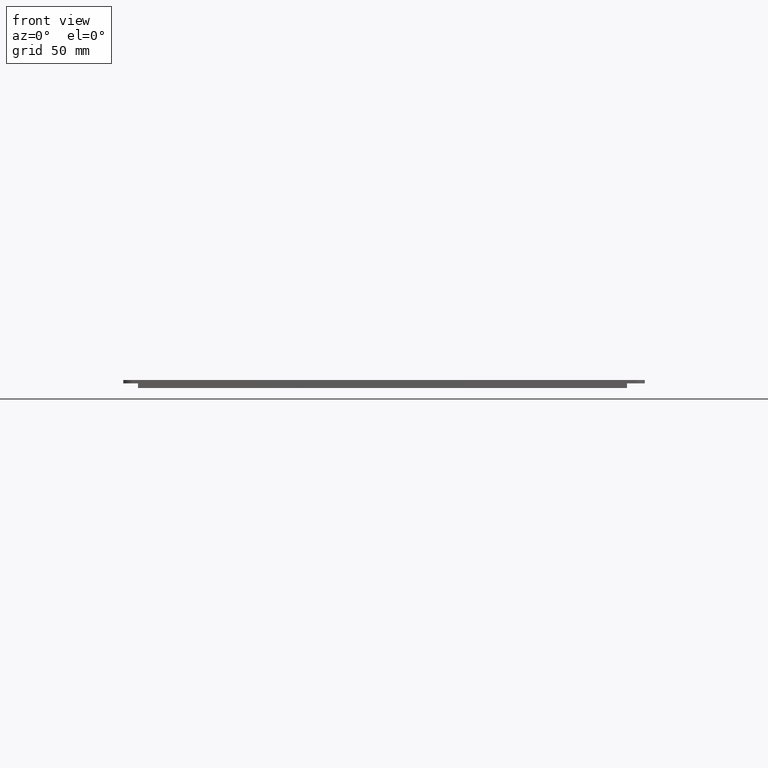
[diagram: clean part render]
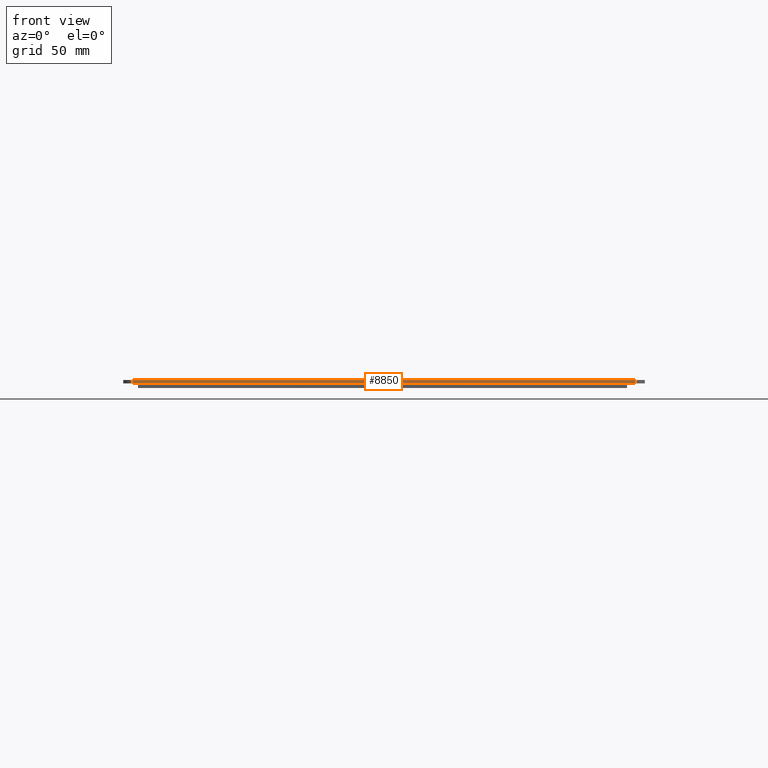
[diagram: same view with one face highlighted and labeled with its STEP entity id]
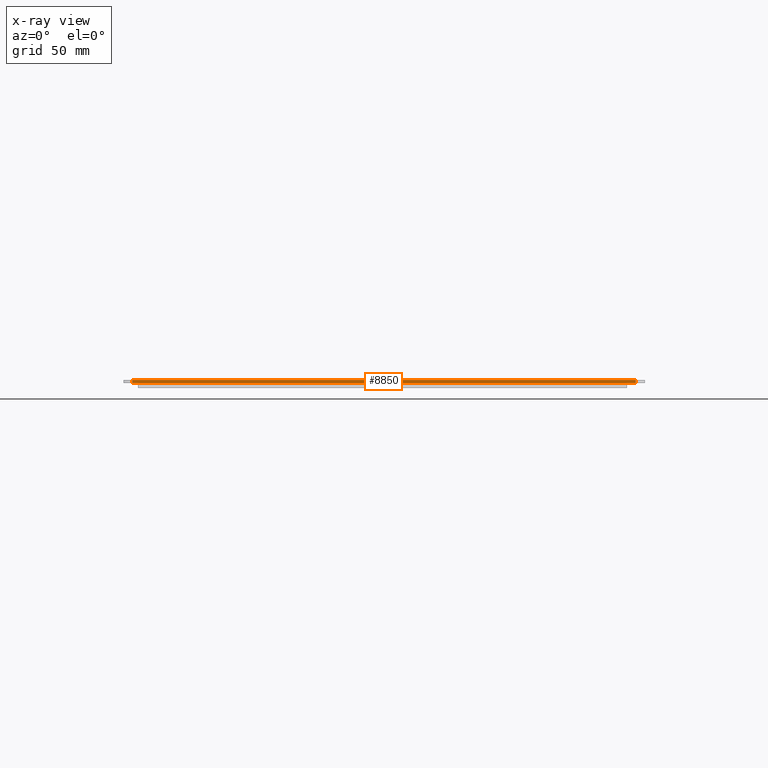
[diagram: x-ray of the same camera — body ghosted, the highlighted face saturated]
A machine part, front view. The second image highlights one B-rep face of the part: STEP entity #8850.
The next image is the same camera in x-ray: the body ghosted, the highlighted face saturated — about 0% of this face is hidden behind the body in this view.
In plain terms, the highlighted planar face has unit normal (0, -1, 0).
Its self-contained STEP definition (entity closure, byte-faithful):
#483=FACE_OUTER_BOUND('',#910,.T.);
#910=EDGE_LOOP('',(#7973,#7974,#7975,#7976));
#939=LINE('',#11484,#2184);
#948=LINE('',#11507,#2193);
#949=LINE('',#11510,#2194);
#950=LINE('',#11513,#2195);
#2184=VECTOR('',#9362,10.);
#2193=VECTOR('',#9383,10.);
#2194=VECTOR('',#9386,10.);
#2195=VECTOR('',#9391,10.);
#3427=VERTEX_POINT('',#11481);
#3428=VERTEX_POINT('',#11483);
#3436=VERTEX_POINT('',#11505);
#3437=VERTEX_POINT('',#11509);
#4271=EDGE_CURVE('',#3427,#3428,#939,.T.);
#4283=EDGE_CURVE('',#3436,#3427,#948,.T.);
#4284=EDGE_CURVE('',#3428,#3437,#949,.T.);
#4286=EDGE_CURVE('',#3436,#3437,#950,.T.);
#7973=ORIENTED_EDGE('',*,*,#4283,.F.);
#7974=ORIENTED_EDGE('',*,*,#4286,.T.);
#7975=ORIENTED_EDGE('',*,*,#4284,.F.);
#7976=ORIENTED_EDGE('',*,*,#4271,.F.);
#8425=PLANE('',#9307);
#8850=ADVANCED_FACE('',(#483),#8425,.T.);
#9307=AXIS2_PLACEMENT_3D('',#13931,#11408,#11409);
#9362=DIRECTION('',(1.,1.87907987242622E-16,0.));
#9383=DIRECTION('',(0.,0.,1.));
#9386=DIRECTION('',(0.,0.,-1.));
#9391=DIRECTION('',(1.,1.87907987242622E-16,0.));
#11408=DIRECTION('center_axis',(1.87907987242622E-16,-1.,0.));
#11409=DIRECTION('ref_axis',(1.,1.87907987242622E-16,0.));
#11481=CARTESIAN_POINT('',(-136.8,-116.05,1.8));
#11483=CARTESIAN_POINT('',(136.8,-116.05,1.8));
#11484=CARTESIAN_POINT('',(-141.8,-116.05,1.8));
#11505=CARTESIAN_POINT('',(-136.8,-116.05,0.));
#11507=CARTESIAN_POINT('',(-136.8,-116.05,0.));
#11509=CARTESIAN_POINT('',(136.8,-116.05,0.));
#11510=CARTESIAN_POINT('',(136.8,-116.05,0.));
#11513=CARTESIAN_POINT('',(-141.8,-116.05,0.));
#13931=CARTESIAN_POINT('Origin',(-141.8,-116.05,0.));